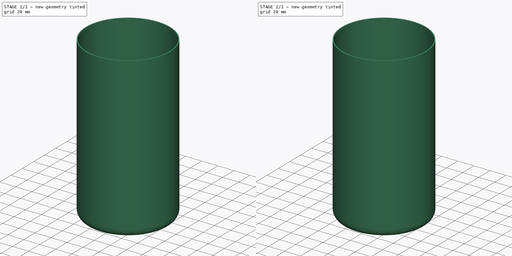
[diagram: build sequence overview — one tinted view per stage of 2, left to right]
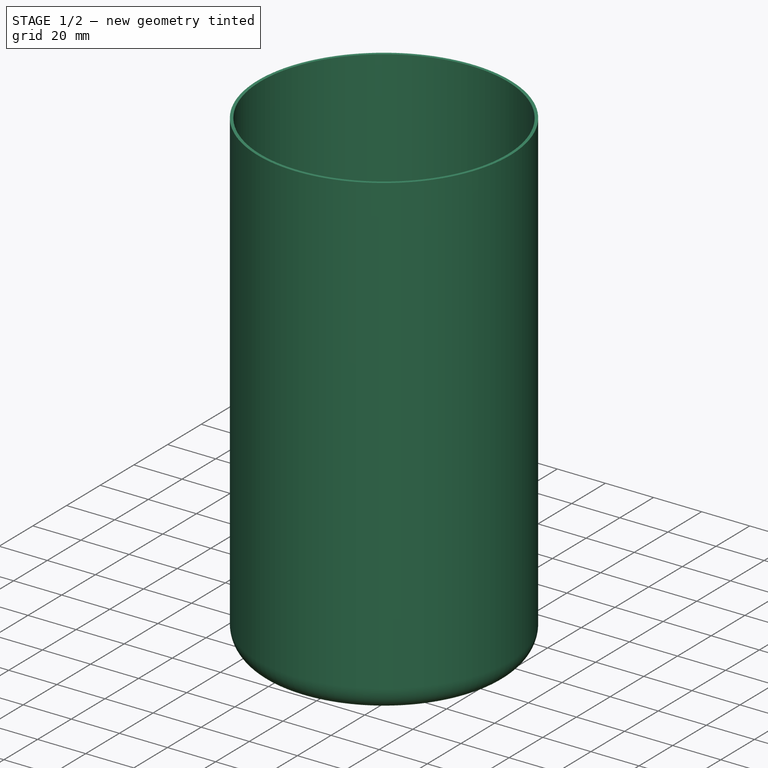
[diagram: stage 1 of 2 — iso view after this stage's code; geometry added in this stage tinted green]
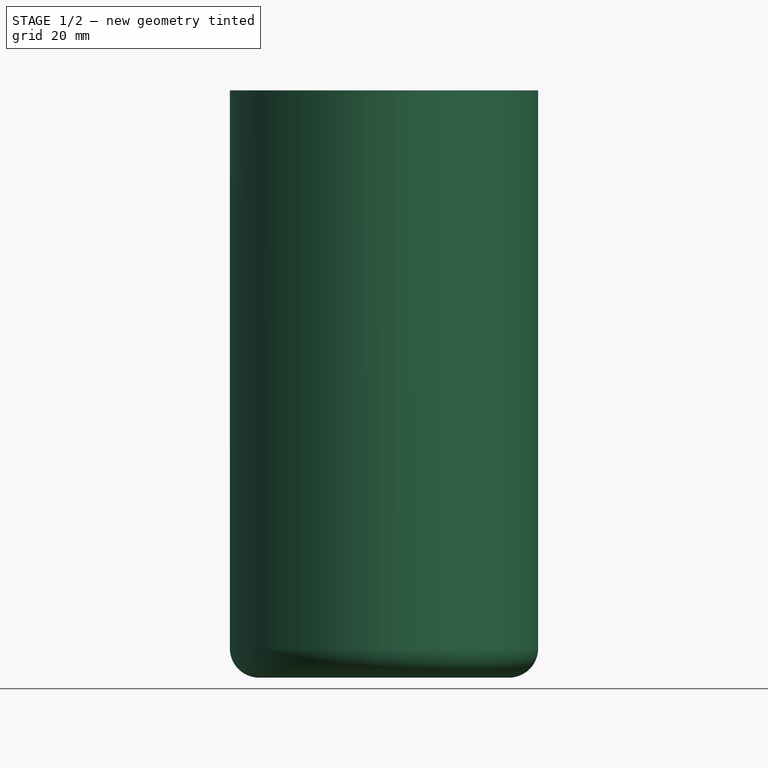
[diagram: stage 1 of 2 — front view after this stage's code; geometry added in this stage tinted green]
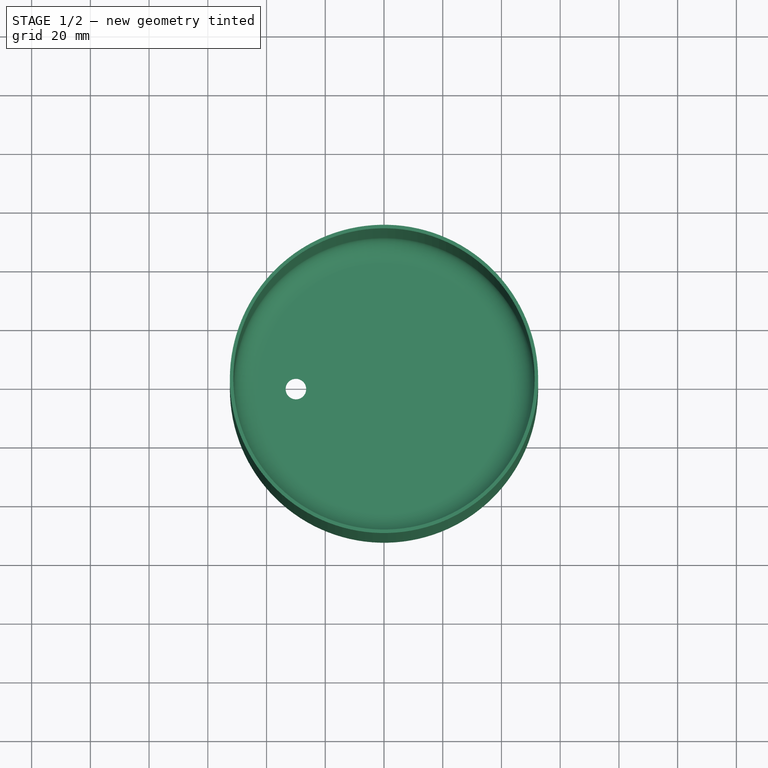
[diagram: stage 1 of 2 — top view after this stage's code; geometry added in this stage tinted green]
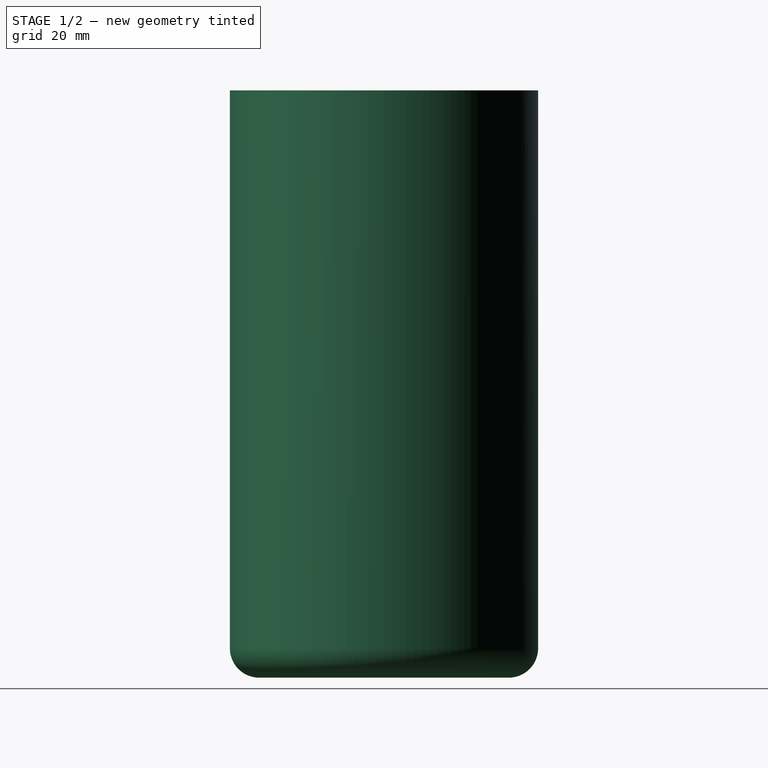
[diagram: stage 1 of 2 — right view after this stage's code; geometry added in this stage tinted green]
FCSTD DOCUMENT  (FreeCAD 1.0R39319 (Git))
Label: flower_pot_round
License: All rights reserved
LicenseURL: https://en.wikipedia.org/wiki/All_rights_reserved
objects: Sketcher::SketchObject×2, Spreadsheet::Sheet×1, PartDesign::Revolution×1, PartDesign::Pocket×1, PartDesign::PolarPattern×1, PartDesign::Body×1
note: 13 computed .brp shape members not serialized (recipe doc carries the construction recipe); baked Part::Feature solids carry a one-line shape summary decoded from their .brp

FEATURE [Spreadsheet::Sheet] Spreadsheet
  cells = A1='diameter; B1(Diameter)=105; C1='Hole diameter; D1(HoleDiameter)=7; A2='Height; B2(Height)=200; C2='Hole count; D2(HoleCount)=6; A3='Wallthickness; B3(WallThickness)=1.2; C3='Hole Distance; D3(HoleDistance)=30; A4='chamfer; B4(Chamfer)=10
FEATURE [Sketcher::SketchObject] Sketch
  ArcFitTolerance = 1e-06
  AttachmentSupport = -> [XZ_Plane]
  FullyConstrained = true
  MakeInternals = false
  MapMode = 5
  Placement = pos=(0,0,0) rot=(1,0,0;1.5708rad)
  expr: Constraints[10] = Spreadsheet.Diameter / 2
  expr: Constraints[11] = Spreadsheet.WallThickness
  expr: Constraints[16] = Spreadsheet.Chamfer
  expr: Constraints[21] = Spreadsheet.Chamfer - Spreadsheet.WallThickness
  expr: Constraints[9] = Spreadsheet.Height
  sketch-geometry (10):
    g0: LineSegment StartX=0 StartY=0 StartZ=0 EndX=-42.5 EndY=0 EndZ=0
    g1: LineSegment StartX=-52.5 StartY=10 StartZ=0 EndX=-52.5 EndY=200 EndZ=0
    g2: LineSegment StartX=-51.3 StartY=200 StartZ=0 EndX=-51.3 EndY=10 EndZ=0
    g3: LineSegment StartX=0 StartY=1.2 StartZ=0 EndX=-42.5 EndY=1.2 EndZ=0
    g4: LineSegment StartX=-51.3 StartY=200 StartZ=0 EndX=-52.5 EndY=200 EndZ=0
    g5: ArcOfCircle CenterX=-42.5 CenterY=10 CenterZ=0 NormalX=0 NormalY=0 NormalZ=1 AngleXU=0 Radius=10 StartAngle=3.14159 EndAngle=4.71239
    g6: GeomPoint [constr] X=-52.5 Y=0 Z=0
    g7: ArcOfCircle CenterX=-42.5 CenterY=10 CenterZ=0 NormalX=0 NormalY=0 NormalZ=1 AngleXU=0 Radius=8.8 StartAngle=3.14159 EndAngle=4.71239
    g8: GeomPoint [constr] X=-51.3 Y=1.2 Z=0
    g9: LineSegment StartX=0 StartY=1.2 StartZ=0 EndX=0 EndY=0 EndZ=0
  constraints (25):
    c: Coincident(g0,g-1)
    c: PointOnObject(g6,g-1)
    c: Vertical(g1)
    c: Vertical(g2)
    c: PointOnObject(g3,g-2)
    c: Horizontal(g3)
    c: Coincident(g4,g2)
    c: Coincident(g4,g1)
    c: Horizontal(g4)
    c: DistanceY(g6,g1) = 200
    c: DistanceX(g6,g0) = 52.5
    c: DistanceX(g1,g2) = 1.2
    c: PointOnObject(g6,g0)
    c: PointOnObject(g6,g1)
    c: Tangent(g0,g5) = 1.5708
    c: Tangent(g1,g5) = 1.5708
    c: DistanceY(g6,g1) = 10
    c: PointOnObject(g8,g3)
    c: PointOnObject(g8,g2)
    c: Tangent(g3,g7) = 1.5708
    c: Tangent(g2,g7) = -1.5708
    c: DistanceY(g8,g2) = 8.8
    c: Coincident(g9,g3)
    c: Coincident(g9,g0)
    c: Equal(g9,g4)
FEATURE [PartDesign::Revolution] Revolution  label="MainPot"
  Angle = 360
  Angle2 = 60
  Axis = (0,2e-16,1)
  Base = (0,0,0)
  Placement = pos=(0,0,0) rot=(1,0,0;1.5708rad)
  Profile = -> Sketch
  ReferenceAxis = -> Sketch [V_Axis]
  Refine = true
  Suppressed = false
  Type = 0
FEATURE [Sketcher::SketchObject] Sketch001
  ArcFitTolerance = 1e-06
  AttachmentSupport = -> [XY_Plane]
  FullyConstrained = true
  MakeInternals = false
  MapMode = 5
  expr: Constraints[1] = Spreadsheet.HoleDistance
  expr: Constraints[2] = Spreadsheet.HoleDiameter
  sketch-geometry (1):
    g0: Circle CenterX=-30 CenterY=0 CenterZ=0 NormalX=0 NormalY=0 NormalZ=1 AngleXU=0 Radius=3.5
  constraints (3):
    c: PointOnObject(g0,g-1)
    c: DistanceX(g0,g-1) = 30
    c: Diameter(g0) = 7
FEATURE [PartDesign::Pocket] Pocket  label="DrainHole"
  BaseFeature = -> Revolution
  Direction = (0,0,-1)
  Length = 5
  Length2 = 5
  Placement = pos=(0,0,0) rot=(1,0,0;1.5708rad)
  Profile = -> Sketch001
  ReferenceAxis = -> Sketch001 [N_Axis]
  Refine = true
  Reversed = true
  Suppressed = false
  Type = 1
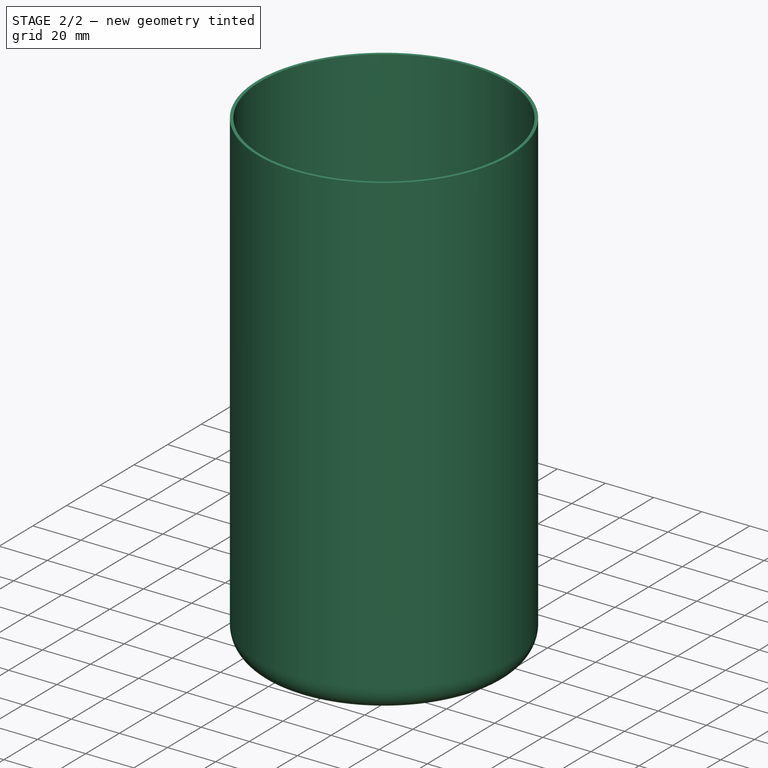
[diagram: stage 2 of 2 — iso view after this stage's code; geometry added in this stage tinted green]
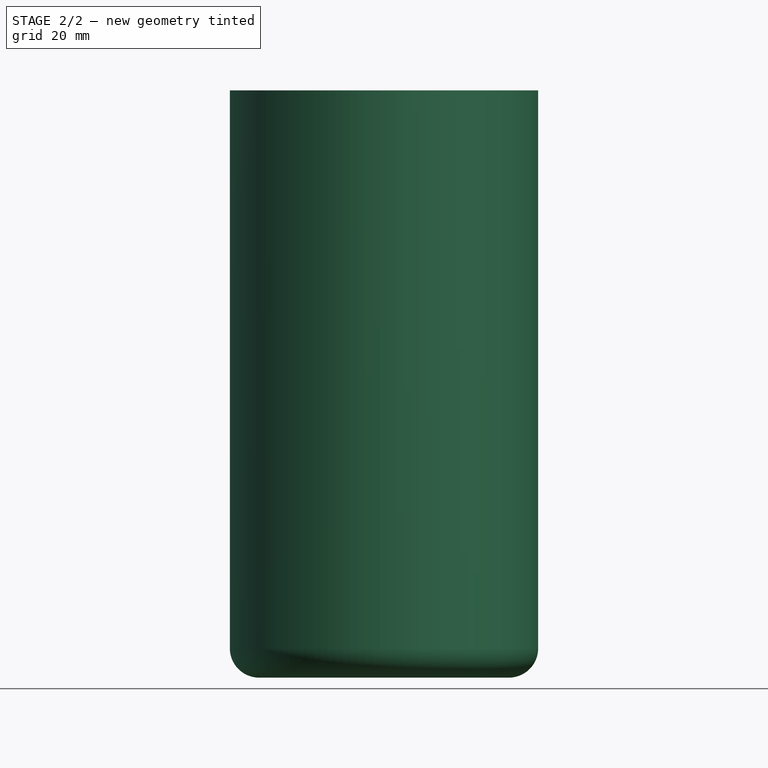
[diagram: stage 2 of 2 — front view after this stage's code; geometry added in this stage tinted green]
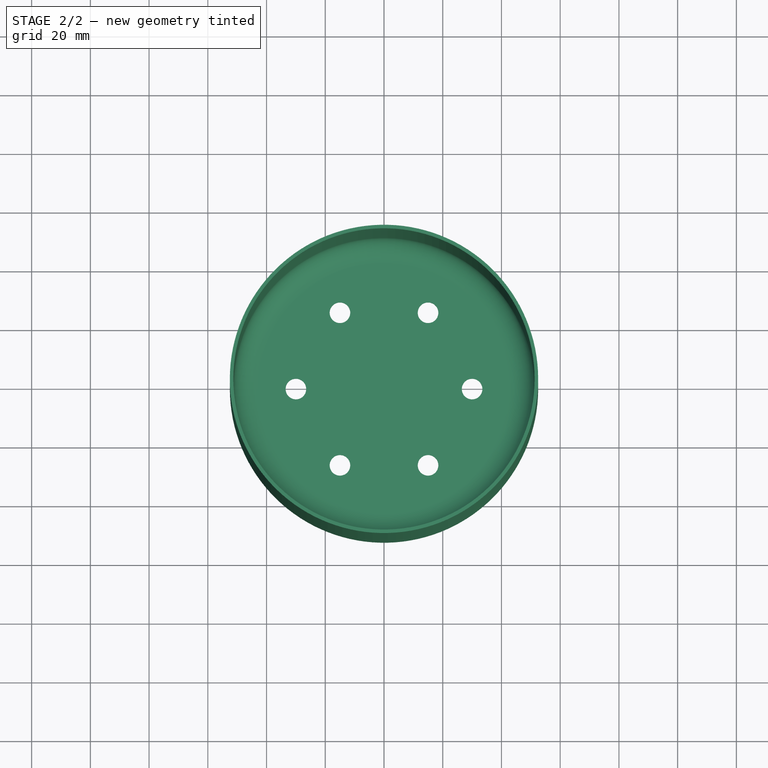
[diagram: stage 2 of 2 — top view after this stage's code; geometry added in this stage tinted green]
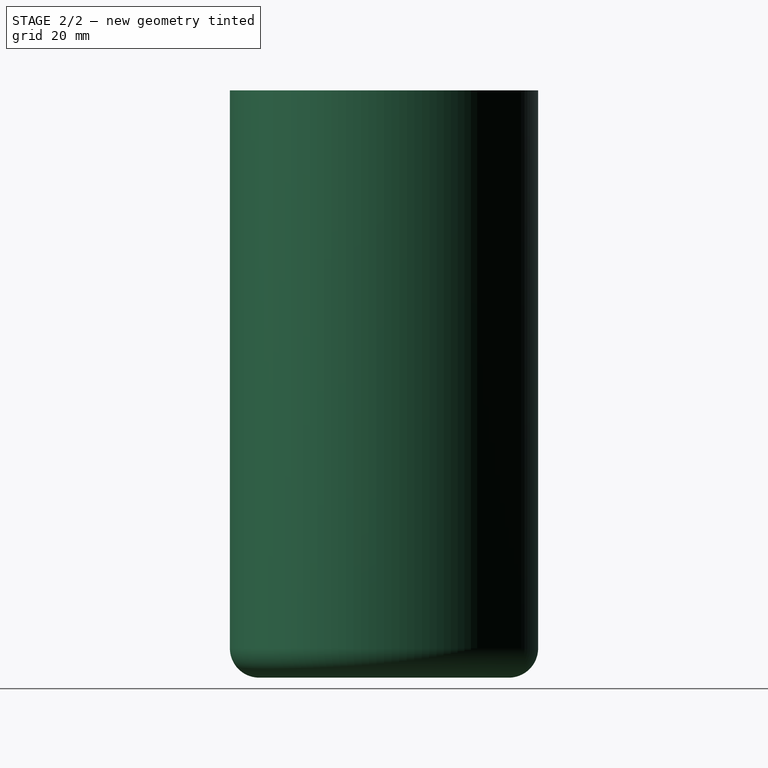
[diagram: stage 2 of 2 — right view after this stage's code; geometry added in this stage tinted green]
FEATURE [PartDesign::PolarPattern] PolarPattern  label="DrainHoles"
  Angle = 360
  Axis = -> Sketch001 [N_Axis]
  BaseFeature = -> Pocket
  Mode = 0
  Occurrences = 6
  Offset = 120
  Originals = -> [Pocket]
  Placement = pos=(0,0,0) rot=(1,0,0;1.5708rad)
  Refine = true
  Suppressed = false
  TransformMode = 0
  expr: Occurrences = Spreadsheet.HoleCount
FEATURE [PartDesign::Body] Body
  AllowCompound = false
  Group = -> [Sketch,Revolution,Sketch001,Pocket,PolarPattern]
  Origin = -> Origin
  Tip = -> PolarPattern
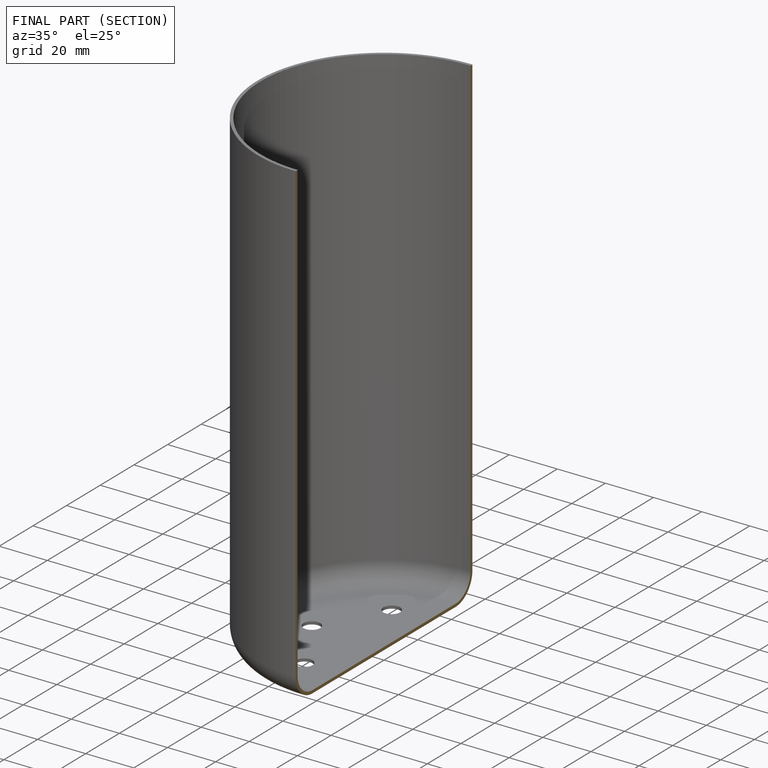
[diagram: finished part — half-section view (interior)]
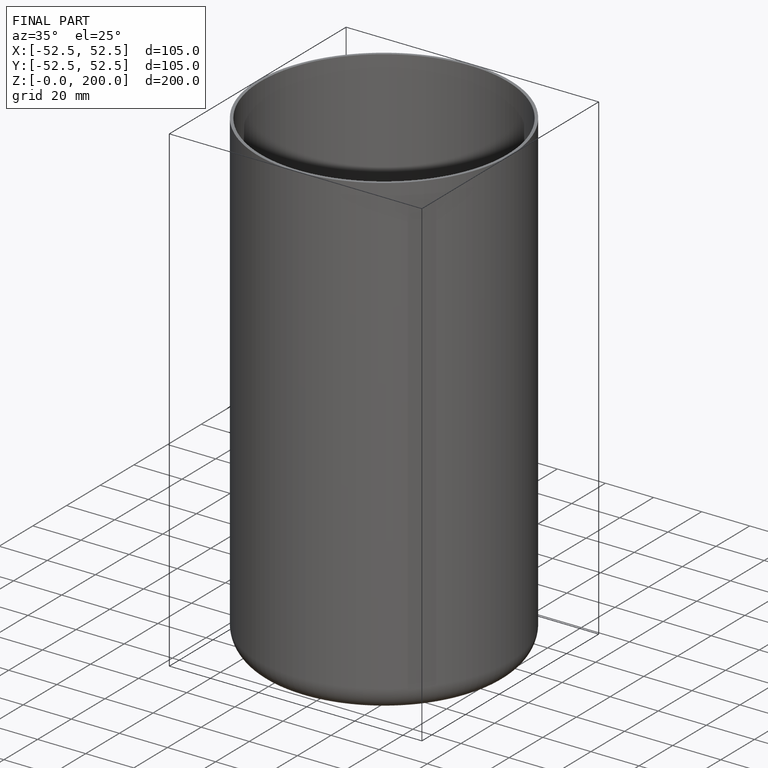
[diagram: finished part — iso view with bounding-box wireframe]
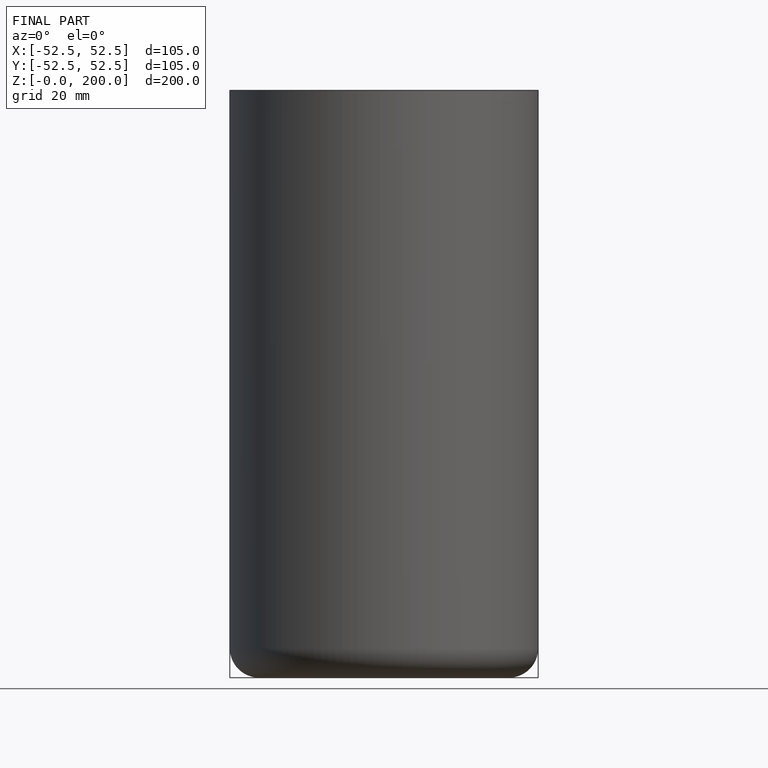
[diagram: finished part — front view with bounding-box wireframe]
